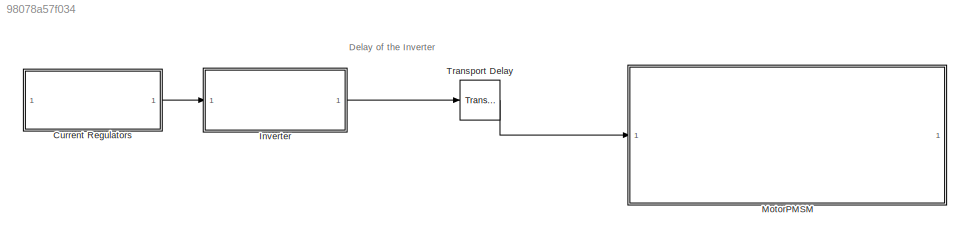
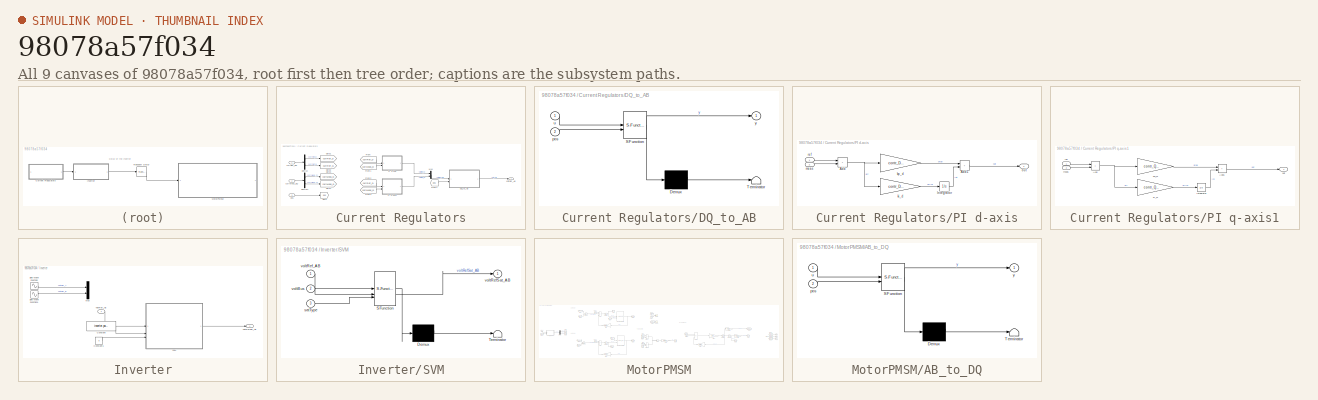
[diagram: thumbnail index - all 9 canvases of the model, root first then tree order]
MODEL slx_98078a57f034
KIND model
CONFIG AbsTol = auto
CONFIG EnableMultiTasking = off
CONFIG FixedStep = auto
CONFIG MaxStep = 1e-3
CONFIG MinStep = auto
CONFIG RelTol = 1e-3
CONFIG SampleTimeConstraint = Unconstrained
CONFIG SolverName = VariableStepAuto
CONFIG StartTime = 0.0
CONFIG StopTime = 0.05
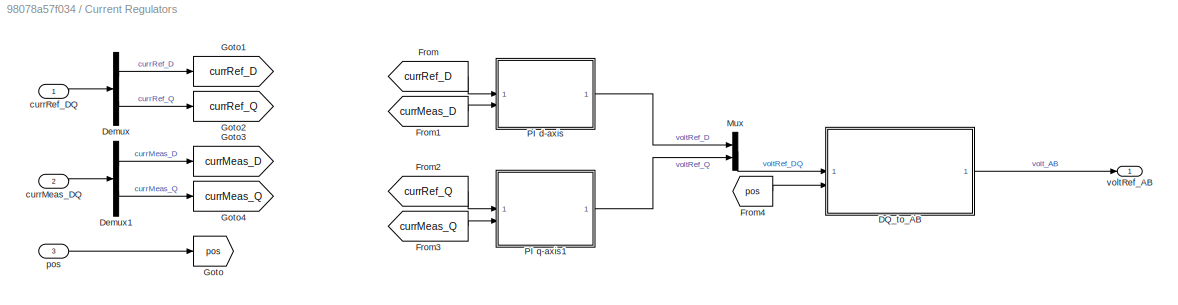
BLOCK [SubSystem] Current Regulators
BLOCK [SubSystem] Current Regulators/DQ_to_AB
  ErrorFcn = Stateflow.Translate.translate
  PermitHierarchicalResolution = ExplicitOnly
  SFBlockType = MATLAB Function
  TreatAsAtomicUnit = on
BLOCK [Demux] Current Regulators/DQ_to_AB/ Demux 
  Outputs = 1
BLOCK [S-Function] Current Regulators/DQ_to_AB/ SFunction 
  EnableBusSupport = on
  FunctionName = sf_sfun
  PortCounts = [2 2]
  SFcnIsStateOwnerBlock = off
  SFunctionDeploymentMode = off
  Tag = Stateflow S-Function 3
BLOCK [Terminator] Current Regulators/DQ_to_AB/ Terminator 
BLOCK [Inport] Current Regulators/DQ_to_AB/pos
  Port = 2
BLOCK [Inport] Current Regulators/DQ_to_AB/u
BLOCK [Outport] Current Regulators/DQ_to_AB/y
BLOCK [Demux] Current Regulators/Demux
  Outputs = 2
BLOCK [Demux] Current Regulators/Demux1
  Outputs = 2
BLOCK [From] Current Regulators/From
  GotoTag = currRef_D
BLOCK [From] Current Regulators/From1
  GotoTag = currMeas_D
BLOCK [From] Current Regulators/From2
  GotoTag = currRef_Q
BLOCK [From] Current Regulators/From3
  GotoTag = currMeas_Q
BLOCK [From] Current Regulators/From4
  GotoTag = pos
BLOCK [Goto] Current Regulators/Goto
  GotoTag = pos
BLOCK [Goto] Current Regulators/Goto1
  GotoTag = currRef_D
BLOCK [Goto] Current Regulators/Goto2
  GotoTag = currRef_Q
BLOCK [Goto] Current Regulators/Goto3
  GotoTag = currMeas_D
BLOCK [Goto] Current Regulators/Goto4
  GotoTag = currMeas_Q
BLOCK [Mux] Current Regulators/Mux
  DisplayOption = bar
  Inputs = 2
BLOCK [SubSystem] Current Regulators/PI d-axis
BLOCK [Sum] Current Regulators/PI d-axis/Add
  IconShape = rectangular
BLOCK [Sum] Current Regulators/PI d-axis/Add1
  IconShape = rectangular
BLOCK [Integrator] Current Regulators/PI d-axis/Integrator
BLOCK [Gain] Current Regulators/PI d-axis/ki_d
  Gain = contr_D.param.ki
BLOCK [Gain] Current Regulators/PI d-axis/kp_d
  Gain = contr_D.param.kp
BLOCK [Inport] Current Regulators/PI d-axis/meas
  Port = 2
BLOCK [Outport] Current Regulators/PI d-axis/out
BLOCK [Inport] Current Regulators/PI d-axis/ref
BLOCK [SubSystem] Current Regulators/PI q-axis1
BLOCK [Sum] Current Regulators/PI q-axis1/Add
  IconShape = rectangular
BLOCK [Sum] Current Regulators/PI q-axis1/Add1
  IconShape = rectangular
BLOCK [Integrator] Current Regulators/PI q-axis1/Integrator
BLOCK [Gain] Current Regulators/PI q-axis1/ki_Q
  Gain = contr_Q.param.ki
BLOCK [Gain] Current Regulators/PI q-axis1/kp_Q
  Gain = contr_Q.param.kp
BLOCK [Inport] Current Regulators/PI q-axis1/meas
  Port = 2
BLOCK [Outport] Current Regulators/PI q-axis1/out
BLOCK [Inport] Current Regulators/PI q-axis1/ref
BLOCK [Inport] Current Regulators/currMeas_DQ
  Port = 2
BLOCK [Inport] Current Regulators/currRef_DQ
BLOCK [Inport] Current Regulators/pos
  Port = 3
BLOCK [Outport] Current Regulators/voltRef_AB
BLOCK [SubSystem] Inverter
BLOCK [Constant] Inverter/Constant
  Value = inverter.param.voltBus
BLOCK [Constant] Inverter/Constant1
  Value = 0
BLOCK [Mux] Inverter/Mux
  DisplayOption = bar
  Inputs = 2
BLOCK [SubSystem] Inverter/SVM
  ErrorFcn = Stateflow.Translate.translate
  PermitHierarchicalResolution = ExplicitOnly
  SFBlockType = MATLAB Function
  TreatAsAtomicUnit = on
BLOCK [Demux] Inverter/SVM/ Demux 
  Outputs = 1
BLOCK [S-Function] Inverter/SVM/ SFunction 
  EnableBusSupport = on
  FunctionName = sf_sfun
  Parameters = inverter
  PortCounts = [3 2]
  SFcnIsStateOwnerBlock = off
  SFunctionDeploymentMode = off
  Tag = Stateflow S-Function 2
BLOCK [Terminator] Inverter/SVM/ Terminator 
BLOCK [Inport] Inverter/SVM/satType
  Port = 3
BLOCK [Inport] Inverter/SVM/voltBus
  Port = 2
BLOCK [Outport] Inverter/SVM/voltRefSat_AB
BLOCK [Inport] Inverter/SVM/voltRef_AB
BLOCK [Sin] Inverter/Sine Wave Function
  Amplitude = 24
  Frequency = 50*2*pi
  SampleTime = 0
BLOCK [Sin] Inverter/Sine Wave Function1
  Amplitude = 24
  Frequency = 50*2*pi
  Phase = pi/2
  SampleTime = 0
BLOCK [Outport] Inverter/voltRefSat_AB
BLOCK [Inport] Inverter/voltRef_AB
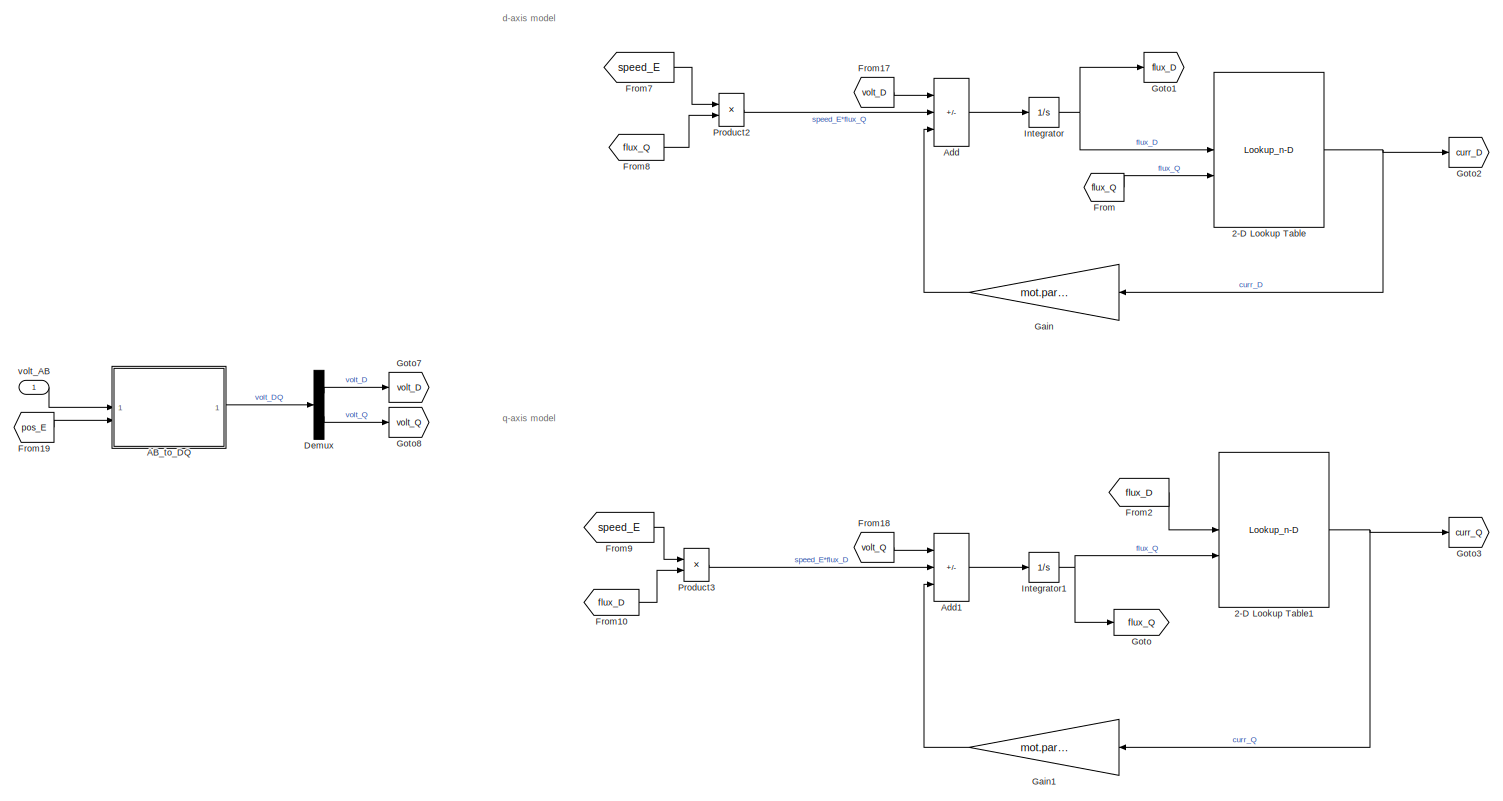
[diagram: MotorPMSM - part 1/3, left side, full height]
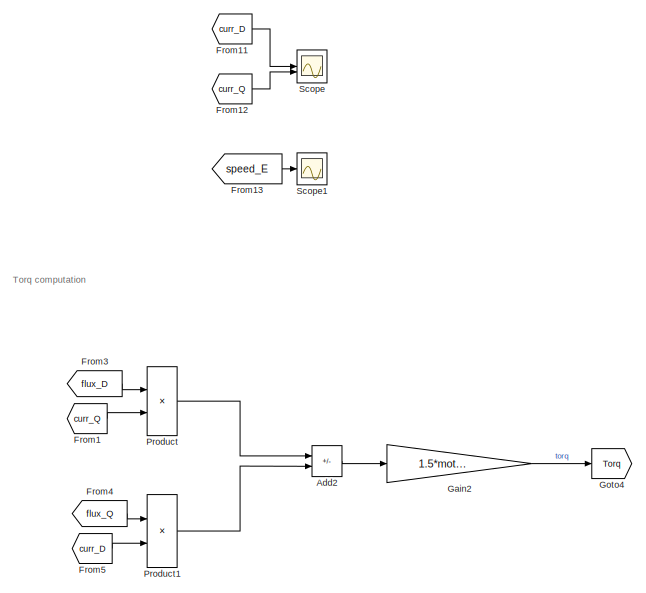
[diagram: MotorPMSM - part 2/3, central region]
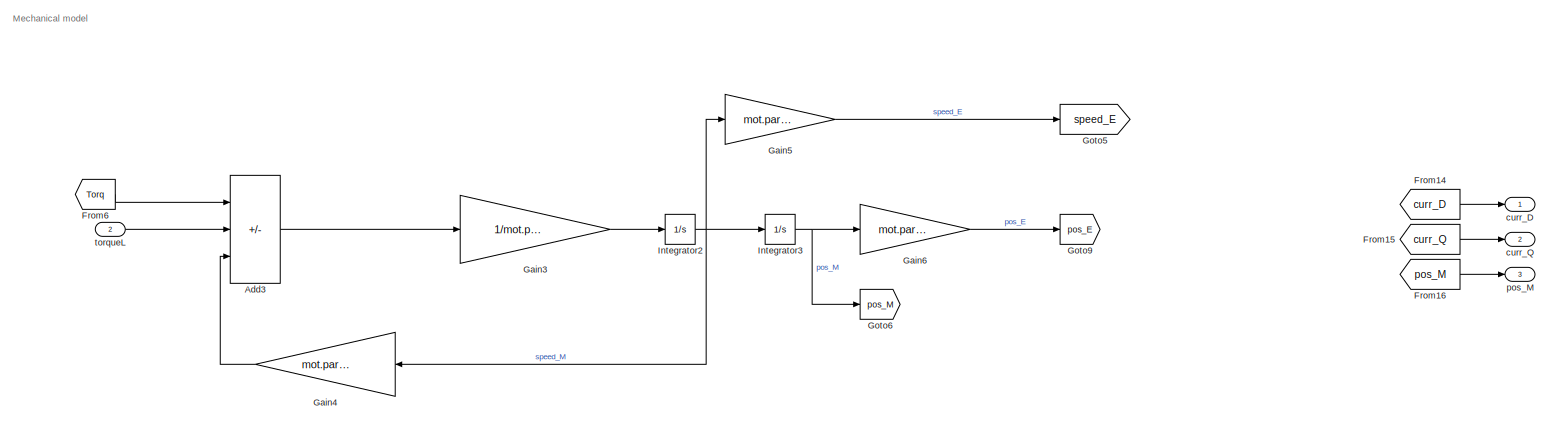
[diagram: MotorPMSM - part 3/3, middle right region]
BLOCK [SubSystem] MotorPMSM
BLOCK [Lookup_n-D] MotorPMSM/2-D Lookup Table
  BreakpointsForDimension1 = mot.maps.fluxVec_D
  BreakpointsForDimension2 = mot.maps.fluxVec_Q
  InputPortMap = u0,u1
  InternalRulePriority = Speed
  RndMeth = Simplest
  Table = mot.maps.currMap_D'
BLOCK [Lookup_n-D] MotorPMSM/2-D Lookup Table1
  BreakpointsForDimension1 = mot.maps.fluxVec_D
  BreakpointsForDimension2 = mot.maps.fluxVec_Q
  InputPortMap = u0,u1
  InternalRulePriority = Speed
  RndMeth = Simplest
  Table = mot.maps.currMap_Q'
BLOCK [SubSystem] MotorPMSM/AB_to_DQ
  ErrorFcn = Stateflow.Translate.translate
  PermitHierarchicalResolution = ExplicitOnly
  SFBlockType = MATLAB Function
  TreatAsAtomicUnit = on
BLOCK [Demux] MotorPMSM/AB_to_DQ/ Demux 
  Outputs = 1
BLOCK [S-Function] MotorPMSM/AB_to_DQ/ SFunction 
  EnableBusSupport = on
  FunctionName = sf_sfun
  PortCounts = [2 2]
  SFcnIsStateOwnerBlock = off
  SFunctionDeploymentMode = off
  Tag = Stateflow S-Function 1
BLOCK [Terminator] MotorPMSM/AB_to_DQ/ Terminator 
BLOCK [Inport] MotorPMSM/AB_to_DQ/pos
  Port = 2
BLOCK [Inport] MotorPMSM/AB_to_DQ/u
BLOCK [Outport] MotorPMSM/AB_to_DQ/y
BLOCK [Sum] MotorPMSM/Add
  IconShape = rectangular
  Inputs = ++-
BLOCK [Sum] MotorPMSM/Add1
  IconShape = rectangular
  Inputs = +--
BLOCK [Sum] MotorPMSM/Add2
  IconShape = rectangular
  Inputs = +-
BLOCK [Sum] MotorPMSM/Add3
  IconShape = rectangular
  Inputs = +--
BLOCK [Demux] MotorPMSM/Demux
  Outputs = 2
BLOCK [From] MotorPMSM/From
  GotoTag = flux_Q
BLOCK [From] MotorPMSM/From1
  GotoTag = curr_Q
BLOCK [From] MotorPMSM/From10
  GotoTag = flux_D
BLOCK [From] MotorPMSM/From11
  GotoTag = curr_D
BLOCK [From] MotorPMSM/From12
  GotoTag = curr_Q
BLOCK [From] MotorPMSM/From13
  GotoTag = speed_E
BLOCK [From] MotorPMSM/From14
  GotoTag = curr_D
BLOCK [From] MotorPMSM/From15
  GotoTag = curr_Q
BLOCK [From] MotorPMSM/From16
  GotoTag = pos_M
BLOCK [From] MotorPMSM/From17
  GotoTag = volt_D
BLOCK [From] MotorPMSM/From18
  GotoTag = volt_Q
BLOCK [From] MotorPMSM/From19
  GotoTag = pos_E
BLOCK [From] MotorPMSM/From2
  GotoTag = flux_D
BLOCK [From] MotorPMSM/From3
  GotoTag = flux_D
BLOCK [From] MotorPMSM/From4
  GotoTag = flux_Q
BLOCK [From] MotorPMSM/From5
  GotoTag = curr_D
BLOCK [From] MotorPMSM/From6
  GotoTag = Torq
BLOCK [From] MotorPMSM/From7
  GotoTag = speed_E
BLOCK [From] MotorPMSM/From8
  GotoTag = flux_Q
BLOCK [From] MotorPMSM/From9
  GotoTag = speed_E
BLOCK [Gain] MotorPMSM/Gain
  Gain = mot.param.resistance
  NameLocation = top
BLOCK [Gain] MotorPMSM/Gain1
  Gain = mot.param.resistance
  NameLocation = top
BLOCK [Gain] MotorPMSM/Gain2
  Gain = 1.5*mot.param.pp
BLOCK [Gain] MotorPMSM/Gain3
  Gain = 1/mot.param.inertiaM
BLOCK [Gain] MotorPMSM/Gain4
  Gain = mot.param.frictionM
  NameLocation = top
BLOCK [Gain] MotorPMSM/Gain5
  Gain = mot.param.pp
BLOCK [Gain] MotorPMSM/Gain6
  Gain = mot.param.pp
BLOCK [Goto] MotorPMSM/Goto
  GotoTag = flux_Q
BLOCK [Goto] MotorPMSM/Goto1
  GotoTag = flux_D
BLOCK [Goto] MotorPMSM/Goto2
  GotoTag = curr_D
BLOCK [Goto] MotorPMSM/Goto3
  GotoTag = curr_Q
BLOCK [Goto] MotorPMSM/Goto4
  GotoTag = Torq
BLOCK [Goto] MotorPMSM/Goto5
  GotoTag = speed_E
BLOCK [Goto] MotorPMSM/Goto6
  GotoTag = pos_M
BLOCK [Goto] MotorPMSM/Goto7
  GotoTag = volt_D
BLOCK [Goto] MotorPMSM/Goto8
  GotoTag = volt_Q
BLOCK [Goto] MotorPMSM/Goto9
  GotoTag = pos_E
BLOCK [Integrator] MotorPMSM/Integrator
  InitialCondition = mot.param.fluxPM
BLOCK [Integrator] MotorPMSM/Integrator1
BLOCK [Integrator] MotorPMSM/Integrator2
BLOCK [Integrator] MotorPMSM/Integrator3
BLOCK [Product] MotorPMSM/Product
BLOCK [Product] MotorPMSM/Product1
BLOCK [Product] MotorPMSM/Product2
BLOCK [Product] MotorPMSM/Product3
BLOCK [Scope] MotorPMSM/Scope
  Floating = off
  NumInputPorts = 2
  ScopeSpecificationString = Simulink.scopes.TimeScopeBlockCfg('CurrentConfiguration', extmgr.ConfigurationSet(extmgr.Configuration('Core','General UI',true),extmgr.Configuration('Core','Source UI',true),extmgr.Configuration('Sources','WiredSimulink',true),extmgr.Configuration('Visuals','Time Domain',true,'SerializedDisplays',{struct('MinYLimReal','-0.65018','MaxYLimReal','3.35166','YLabelReal','','MinYLimMag','0.00000','MaxY...<+1474ch>
BLOCK [Scope] MotorPMSM/Scope1
  Floating = off
  NumInputPorts = 1
  ScopeSpecificationString = Simulink.scopes.TimeScopeBlockCfg('CurrentConfiguration', extmgr.ConfigurationSet(extmgr.Configuration('Core','General UI',true),extmgr.Configuration('Core','Source UI',true),extmgr.Configuration('Sources','WiredSimulink',true,'DataLoggingVariableName','ScopeData1'),extmgr.Configuration('Visuals','Time Domain',true,'SerializedDisplays',{struct('MinYLimReal','-13.92944','MaxYLimReal','125.36492','Y...<+1496ch>
BLOCK [Outport] MotorPMSM/curr_D
BLOCK [Outport] MotorPMSM/curr_Q
  Port = 2
BLOCK [Outport] MotorPMSM/pos_M
  Port = 3
BLOCK [Inport] MotorPMSM/torqueL
  Port = 2
BLOCK [Inport] MotorPMSM/volt_AB
BLOCK [TransportDelay] Transport Delay
  DelayTime = 1.5*inverter.param.timePWM
ANNOTATION (root): Delay of the Inverter
ANNOTATION MotorPMSM: Mechanical model
ANNOTATION MotorPMSM: Torq computation
ANNOTATION MotorPMSM: d-axis model
ANNOTATION MotorPMSM: q-axis model
LINE Current Regulators/DQ_to_AB:1 -> Current Regulators/voltRef_AB:1
LINE Current Regulators/Demux1:1 -> Current Regulators/Goto3:1
LINE Current Regulators/Demux1:2 -> Current Regulators/Goto4:1
LINE Current Regulators/Demux:1 -> Current Regulators/Goto1:1
LINE Current Regulators/Demux:2 -> Current Regulators/Goto2:1
LINE Current Regulators/From1:1 -> Current Regulators/PI d-axis:2
LINE Current Regulators/From2:1 -> Current Regulators/PI q-axis1:1
LINE Current Regulators/From3:1 -> Current Regulators/PI q-axis1:2
LINE Current Regulators/From4:1 -> Current Regulators/DQ_to_AB:2
LINE Current Regulators/From:1 -> Current Regulators/PI d-axis:1
LINE Current Regulators/Mux:1 -> Current Regulators/DQ_to_AB:1
LINE Current Regulators/PI d-axis/Add1:1 -> Current Regulators/PI d-axis/out:1
NET Current Regulators/PI d-axis/Add:1 -> Current Regulators/PI d-axis/ki_d:1, Current Regulators/PI d-axis/kp_d:1
LINE Current Regulators/PI d-axis/Integrator:1 -> Current Regulators/PI d-axis/Add1:2
LINE Current Regulators/PI d-axis/ki_d:1 -> Current Regulators/PI d-axis/Integrator:1
LINE Current Regulators/PI d-axis/kp_d:1 -> Current Regulators/PI d-axis/Add1:1
LINE Current Regulators/PI d-axis/meas:1 -> Current Regulators/PI d-axis/Add:2
LINE Current Regulators/PI d-axis/ref:1 -> Current Regulators/PI d-axis/Add:1
LINE Current Regulators/PI d-axis:1 -> Current Regulators/Mux:1
LINE Current Regulators/PI q-axis1/Add1:1 -> Current Regulators/PI q-axis1/out:1
NET Current Regulators/PI q-axis1/Add:1 -> Current Regulators/PI q-axis1/ki_Q:1, Current Regulators/PI q-axis1/kp_Q:1
LINE Current Regulators/PI q-axis1/Integrator:1 -> Current Regulators/PI q-axis1/Add1:2
LINE Current Regulators/PI q-axis1/ki_Q:1 -> Current Regulators/PI q-axis1/Integrator:1
LINE Current Regulators/PI q-axis1/kp_Q:1 -> Current Regulators/PI q-axis1/Add1:1
LINE Current Regulators/PI q-axis1/meas:1 -> Current Regulators/PI q-axis1/Add:2
LINE Current Regulators/PI q-axis1/ref:1 -> Current Regulators/PI q-axis1/Add:1
LINE Current Regulators/PI q-axis1:1 -> Current Regulators/Mux:2
LINE Current Regulators/currMeas_DQ:1 -> Current Regulators/Demux1:1
LINE Current Regulators/currRef_DQ:1 -> Current Regulators/Demux:1
LINE Current Regulators/pos:1 -> Current Regulators/Goto:1
LINE Current Regulators:1 -> Inverter:1
LINE Inverter/Constant1:1 -> Inverter/SVM:3
LINE Inverter/Constant:1 -> Inverter/SVM:2
LINE Inverter/SVM:1 -> Inverter/voltRefSat_AB:1
LINE Inverter/Sine Wave Function1:1 -> Inverter/Mux:2
LINE Inverter/Sine Wave Function:1 -> Inverter/Mux:1
LINE Inverter/voltRef_AB:1 -> Inverter/SVM:1
LINE Inverter:1 -> Transport Delay:1
NET MotorPMSM/2-D Lookup Table1:1 -> MotorPMSM/Gain1:1, MotorPMSM/Goto3:1
NET MotorPMSM/2-D Lookup Table:1 -> MotorPMSM/Gain:1, MotorPMSM/Goto2:1
LINE MotorPMSM/AB_to_DQ:1 -> MotorPMSM/Demux:1
LINE MotorPMSM/Add1:1 -> MotorPMSM/Integrator1:1
LINE MotorPMSM/Add2:1 -> MotorPMSM/Gain2:1
LINE MotorPMSM/Add3:1 -> MotorPMSM/Gain3:1
LINE MotorPMSM/Add:1 -> MotorPMSM/Integrator:1
LINE MotorPMSM/Demux:1 -> MotorPMSM/Goto7:1
LINE MotorPMSM/Demux:2 -> MotorPMSM/Goto8:1
LINE MotorPMSM/From10:1 -> MotorPMSM/Product3:2
LINE MotorPMSM/From11:1 -> MotorPMSM/Scope:1
LINE MotorPMSM/From12:1 -> MotorPMSM/Scope:2
LINE MotorPMSM/From13:1 -> MotorPMSM/Scope1:1
LINE MotorPMSM/From14:1 -> MotorPMSM/curr_D:1
LINE MotorPMSM/From15:1 -> MotorPMSM/curr_Q:1
LINE MotorPMSM/From16:1 -> MotorPMSM/pos_M:1
LINE MotorPMSM/From17:1 -> MotorPMSM/Add:1
LINE MotorPMSM/From18:1 -> MotorPMSM/Add1:1
LINE MotorPMSM/From19:1 -> MotorPMSM/AB_to_DQ:2
LINE MotorPMSM/From1:1 -> MotorPMSM/Product:2
LINE MotorPMSM/From2:1 -> MotorPMSM/2-D Lookup Table1:1
LINE MotorPMSM/From3:1 -> MotorPMSM/Product:1
LINE MotorPMSM/From4:1 -> MotorPMSM/Product1:1
LINE MotorPMSM/From5:1 -> MotorPMSM/Product1:2
LINE MotorPMSM/From6:1 -> MotorPMSM/Add3:1
LINE MotorPMSM/From7:1 -> MotorPMSM/Product2:1
LINE MotorPMSM/From8:1 -> MotorPMSM/Product2:2
LINE MotorPMSM/From9:1 -> MotorPMSM/Product3:1
LINE MotorPMSM/From:1 -> MotorPMSM/2-D Lookup Table:2
LINE MotorPMSM/Gain1:1 -> MotorPMSM/Add1:3
LINE MotorPMSM/Gain2:1 -> MotorPMSM/Goto4:1
LINE MotorPMSM/Gain3:1 -> MotorPMSM/Integrator2:1
LINE MotorPMSM/Gain4:1 -> MotorPMSM/Add3:3
LINE MotorPMSM/Gain5:1 -> MotorPMSM/Goto5:1
LINE MotorPMSM/Gain6:1 -> MotorPMSM/Goto9:1
LINE MotorPMSM/Gain:1 -> MotorPMSM/Add:3
NET MotorPMSM/Integrator1:1 -> MotorPMSM/2-D Lookup Table1:2, MotorPMSM/Goto:1
NET MotorPMSM/Integrator2:1 -> MotorPMSM/Gain4:1, MotorPMSM/Gain5:1, MotorPMSM/Integrator3:1
NET MotorPMSM/Integrator3:1 -> MotorPMSM/Gain6:1, MotorPMSM/Goto6:1
NET MotorPMSM/Integrator:1 -> MotorPMSM/2-D Lookup Table:1, MotorPMSM/Goto1:1
LINE MotorPMSM/Product1:1 -> MotorPMSM/Add2:2
LINE MotorPMSM/Product2:1 -> MotorPMSM/Add:2
LINE MotorPMSM/Product3:1 -> MotorPMSM/Add1:2
LINE MotorPMSM/Product:1 -> MotorPMSM/Add2:1
LINE MotorPMSM/torqueL:1 -> MotorPMSM/Add3:2
LINE MotorPMSM/volt_AB:1 -> MotorPMSM/AB_to_DQ:1
LINE Transport Delay:1 -> MotorPMSM:1
note: NET lines group one-source signal fan-out (src -> all destinations, sorted); 1:1 wires keep LINE
CHART MotorPMSM/AB_to_DQ states=1 transitions=1
  STATE_LABEL 'eML_blk_kernel()'
  STATE_LABEL 'SCRIPT:\nfunction y = AB2DQ(u, pos)\n% u = 2x1 vector\n% y = 2x1 vector \n% pos = position in rad \n\n% Transformation matrix \nT_AB2DQ = [cos(pos) sin(pos);...\n           -sin(pos) cos(pos)];\n\n% Get output\ny = T_AB2DQ * u ;\n'
CHART Inverter/SVM states=1 transitions=1
  STATE_LABEL 'eML_blk_kernel()'
  STATE_LABEL 'SCRIPT:\nfunction voltRefSat_AB = fcn(voltRef_AB,voltBus,satType,inverter)\n%satType = 0 -> circular saturation \n%satType = 1 -> hexagonal saturation \n\nTpwm = inverter.param.timePWM;\n\n%% Circular saturation \nvoltRefMag_AB = sqrt(voltRef_AB(1)^2+voltRef_AB(2)^2);\nvoltBus_sqrt3 = voltBus / sqrt(3);\n\nif ((satType == 0) && (voltRefMag_AB > voltBus_sqrt3)) % check if ref is > of the value of saturation\n ...<+1358ch>'
CHART Current Regulators/DQ_to_AB states=1 transitions=1
  STATE_LABEL 'eML_blk_kernel()'
  STATE_LABEL 'SCRIPT:\nfunction y = DQ2AB(u, pos)\n% u = 2x1 vector\n% y = 2x1 vector \n% pos = position in rad \n\n% Transformation matrix \nT_DQ2AB = [cos(pos) -sin(pos);...\n           sin(pos) cos(pos)];\n\n% Get output\ny = T_DQ2AB * u ;\n'
CHART  states=0 transitions=0
CHART  states=0 transitions=0
CHART  states=0 transitions=0
